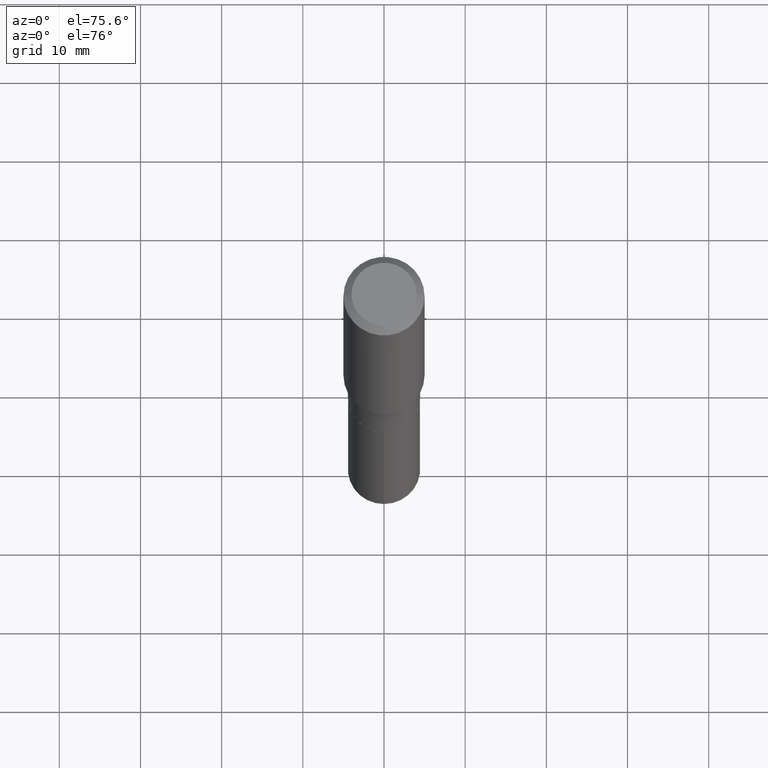
[diagram: clean part render]
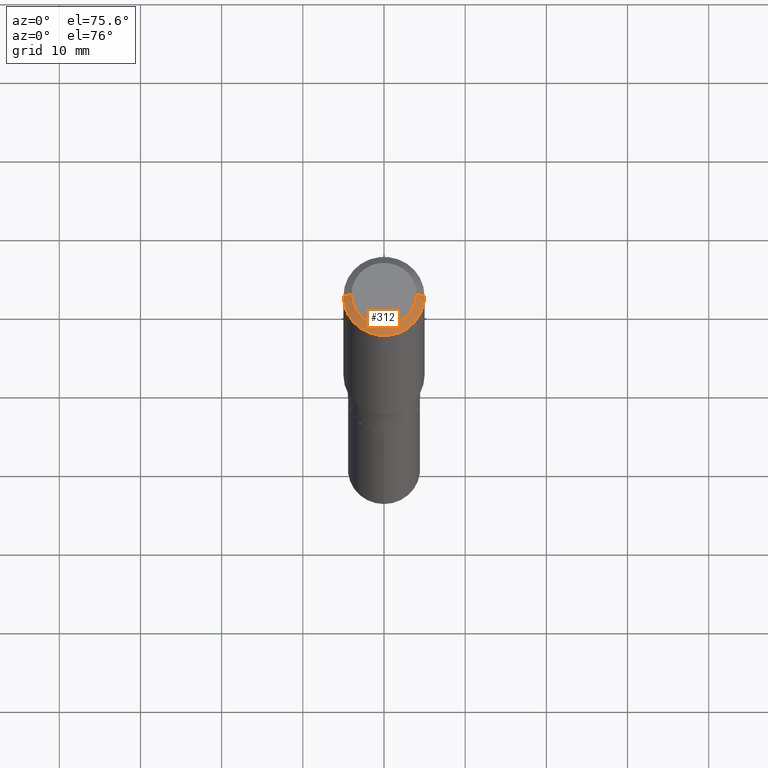
[diagram: same view with one face highlighted and labeled with its STEP entity id]
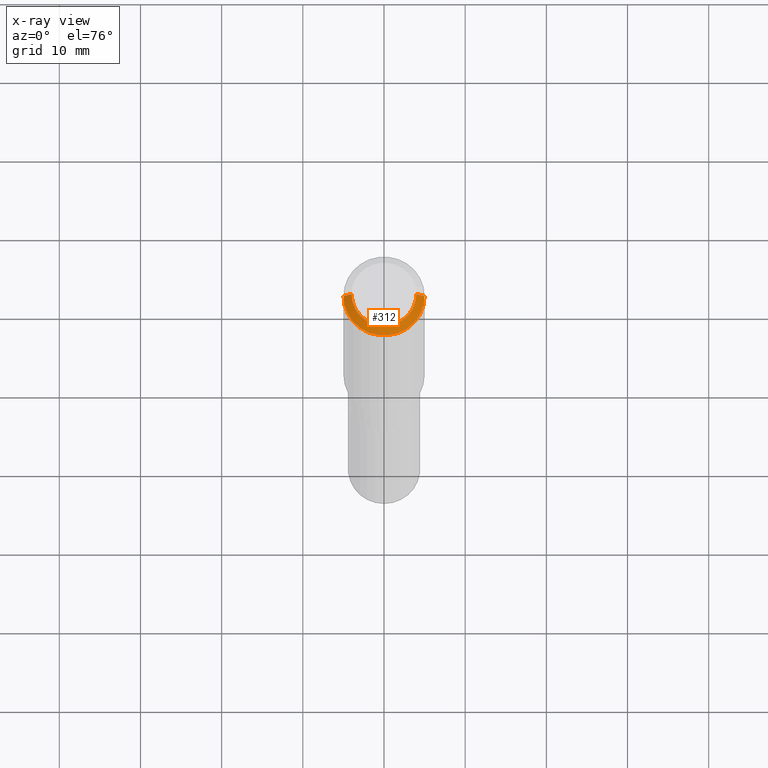
[diagram: x-ray of the same camera — body ghosted, the highlighted face saturated]
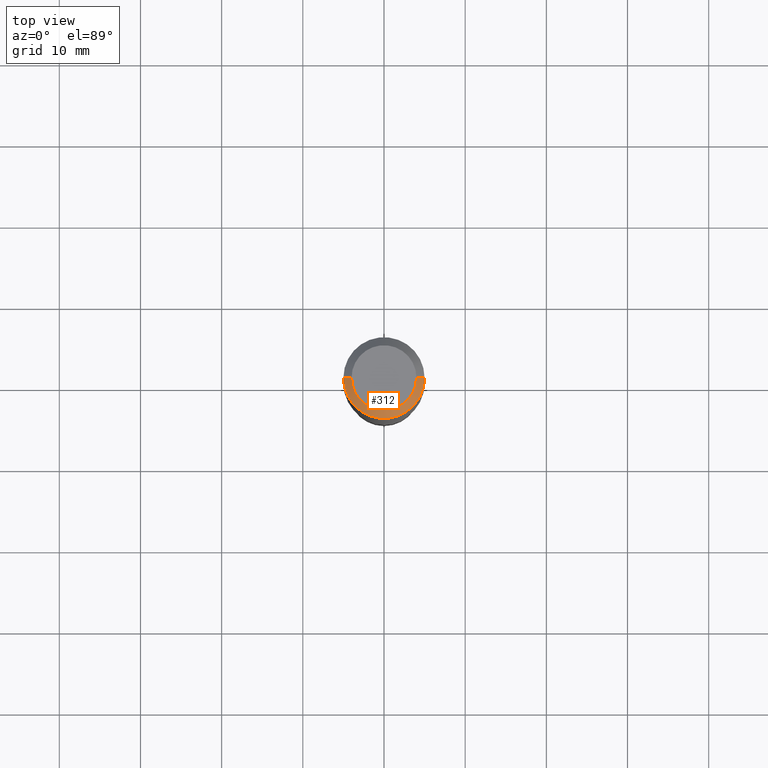
[diagram: same view with one face highlighted and labeled with its STEP entity id]
A machine part, auxiliary view. The second image highlights one B-rep face of the part: STEP entity #312.
The next image is the same camera in x-ray: the body ghosted, the highlighted face saturated — about 0% of this face is hidden behind the body in this view.
A second angle (top view) of the same face is appended — the face is thin or edge-on in the first view.
In plain terms, the highlighted conical surface has half-angle 45 deg.
Its self-contained STEP definition (entity closure, byte-faithful):
#1 = AXIS2_PLACEMENT_3D ( 'NONE', #430, #395, #51 ) ;
#2 = ORIENTED_EDGE ( 'NONE', *, *, #288, .T. ) ;
#24 = FACE_OUTER_BOUND ( 'NONE', #330, .T. ) ;
#51 = DIRECTION ( 'NONE',  ( 1.000000000000000000, -6.982962677686265922E-15, 0.000000000000000000 ) ) ;
#53 = DIRECTION ( 'NONE',  ( 1.000000000000000000, -6.982962677686265922E-15, 4.876223630392693006E-29 ) ) ;
#55 = LINE ( 'NONE', #142, #193 ) ;
#81 = EDGE_CURVE ( 'NONE', #253, #379, #135, .T. ) ;
#98 = CARTESIAN_POINT ( 'NONE',  ( -0.1574800000000000089, 1.168406772637159618E-15, 3.855188123707939751E-18 ) ) ;
#99 = CARTESIAN_POINT ( 'NONE',  ( 0.1968500000000000250, -1.512055823412797189E-15, -0.03937000000000029365 ) ) ;
#114 = DIRECTION ( 'NONE',  ( -2.445468806185136597E-29, 3.491481338843145583E-15, 1.000000000000000000 ) ) ;
#125 = ORIENTED_EDGE ( 'NONE', *, *, #336, .F. ) ;
#135 = CIRCLE ( 'NONE', #421, 0.1574800000000000089 ) ;
#142 = CARTESIAN_POINT ( 'NONE',  ( 0.1968500000000000250, -1.487948651171581601E-15, -0.03937000000000029365 ) ) ;
#144 = DIRECTION ( 'NONE',  ( 2.445468806185136597E-29, -3.491481338843145583E-15, -1.000000000000000000 ) ) ;
#162 = VERTEX_POINT ( 'NONE', #168 ) ;
#168 = CARTESIAN_POINT ( 'NONE',  ( -0.1968500000000000250, -1.426987386995387785E-15, -0.03937000000000029365 ) ) ;
#178 = CARTESIAN_POINT ( 'NONE',  ( 9.627810689950954155E-31, -1.374596203102556547E-16, -0.03937000000000029365 ) ) ;
#193 = VECTOR ( 'NONE', #302, 39.37007874015748143 ) ;
#197 = CIRCLE ( 'NONE', #1, 0.1968500000000000250 ) ;
#253 = VERTEX_POINT ( 'NONE', #98 ) ;
#269 = AXIS2_PLACEMENT_3D ( 'NONE', #178, #144, #337 ) ;
#279 = CARTESIAN_POINT ( 'NONE',  ( -9.427742298522567634E-47, 1.346031739168368355E-32, 3.855188123715870730E-18 ) ) ;
#284 = ORIENTED_EDGE ( 'NONE', *, *, #81, .F. ) ;
#288 = EDGE_CURVE ( 'NONE', #253, #162, #484, .T. ) ;
#296 = VERTEX_POINT ( 'NONE', #99 ) ;
#302 = DIRECTION ( 'NONE',  ( 0.7071067811865450192, -7.319954787623246579E-15, -0.7071067811865500152 ) ) ;
#310 = CARTESIAN_POINT ( 'NONE',  ( -0.1968500000000000250, 1.237136582792286225E-15, -0.03937000000000029365 ) ) ;
#312 = ADVANCED_FACE ( 'NONE', ( #24 ), #418, .T. ) ;
#330 = EDGE_LOOP ( 'NONE', ( #125, #284, #2, #398 ) ) ;
#336 = EDGE_CURVE ( 'NONE', #379, #296, #55, .T. ) ;
#337 = DIRECTION ( 'NONE',  ( -1.000000000000000000, 6.982962677686265922E-15, 0.000000000000000000 ) ) ;
#379 = VERTEX_POINT ( 'NONE', #408 ) ;
#380 = DIRECTION ( 'NONE',  ( -0.7071067811865450192, 2.468850131082230634E-15, -0.7071067811865500152 ) ) ;
#387 = EDGE_CURVE ( 'NONE', #162, #296, #197, .T. ) ;
#395 = DIRECTION ( 'NONE',  ( -2.445468806185136597E-29, 3.491481338843145583E-15, 1.000000000000000000 ) ) ;
#398 = ORIENTED_EDGE ( 'NONE', *, *, #387, .T. ) ;
#408 = CARTESIAN_POINT ( 'NONE',  ( 0.1574800000000000089, -1.284169937930321189E-15, 3.855188123724205385E-18 ) ) ;
#418 = CONICAL_SURFACE ( 'NONE', #269, 0.1968500000000000250, 0.7853981633974447263 ) ;
#421 = AXIS2_PLACEMENT_3D ( 'NONE', #279, #114, #53 ) ;
#430 = CARTESIAN_POINT ( 'NONE',  ( 9.627810689950954155E-31, -1.374596203102556547E-16, -0.03937000000000029365 ) ) ;
#445 = VECTOR ( 'NONE', #380, 39.37007874015748143 ) ;
#484 = LINE ( 'NONE', #310, #445 ) ;